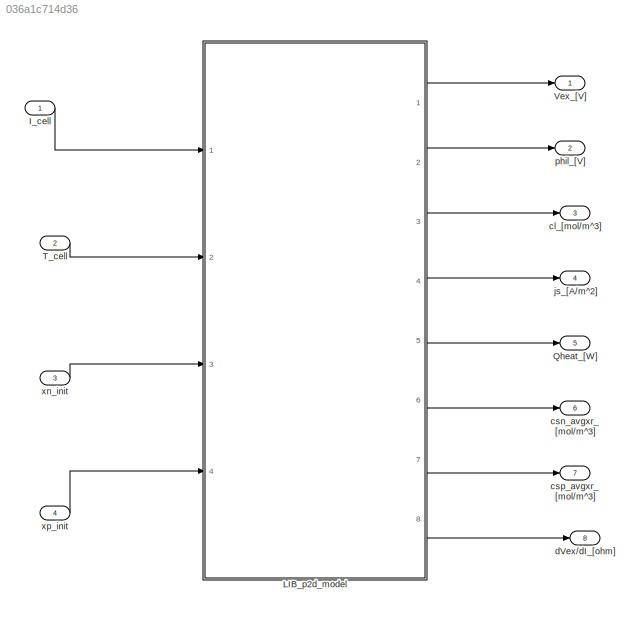
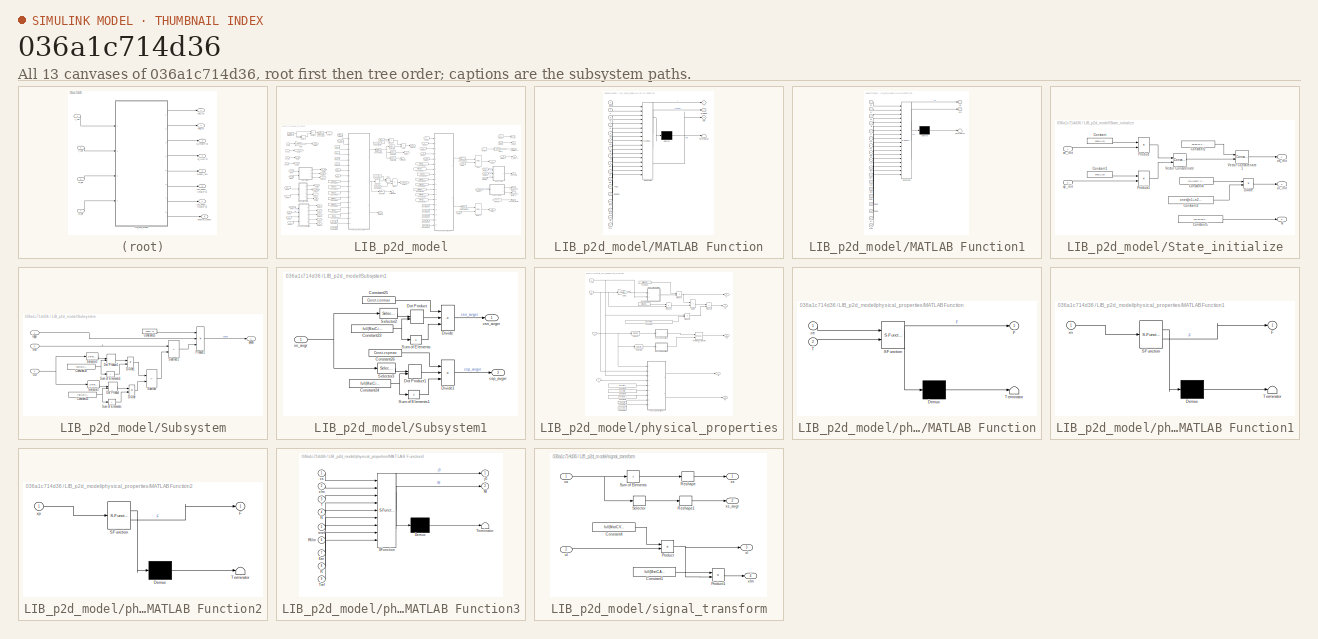
[diagram: thumbnail index - all 13 canvases of the model, root first then tree order]
MODEL slx_036a1c714d36
KIND model
CONFIG AbsTol = auto
CONFIG EnableMultiTasking = off
CONFIG FixedStep = dt
CONFIG MaxStep = auto
CONFIG MinStep = auto
CONFIG RelTol = 1e-3
CONFIG SampleTimeConstraint = Unconstrained
CONFIG SolverName = FixedStepDiscrete
CONFIG StartTime = 0.0
CONFIG StopTime = inf
BLOCK [Inport] I_cell
  OutDataTypeStr = single
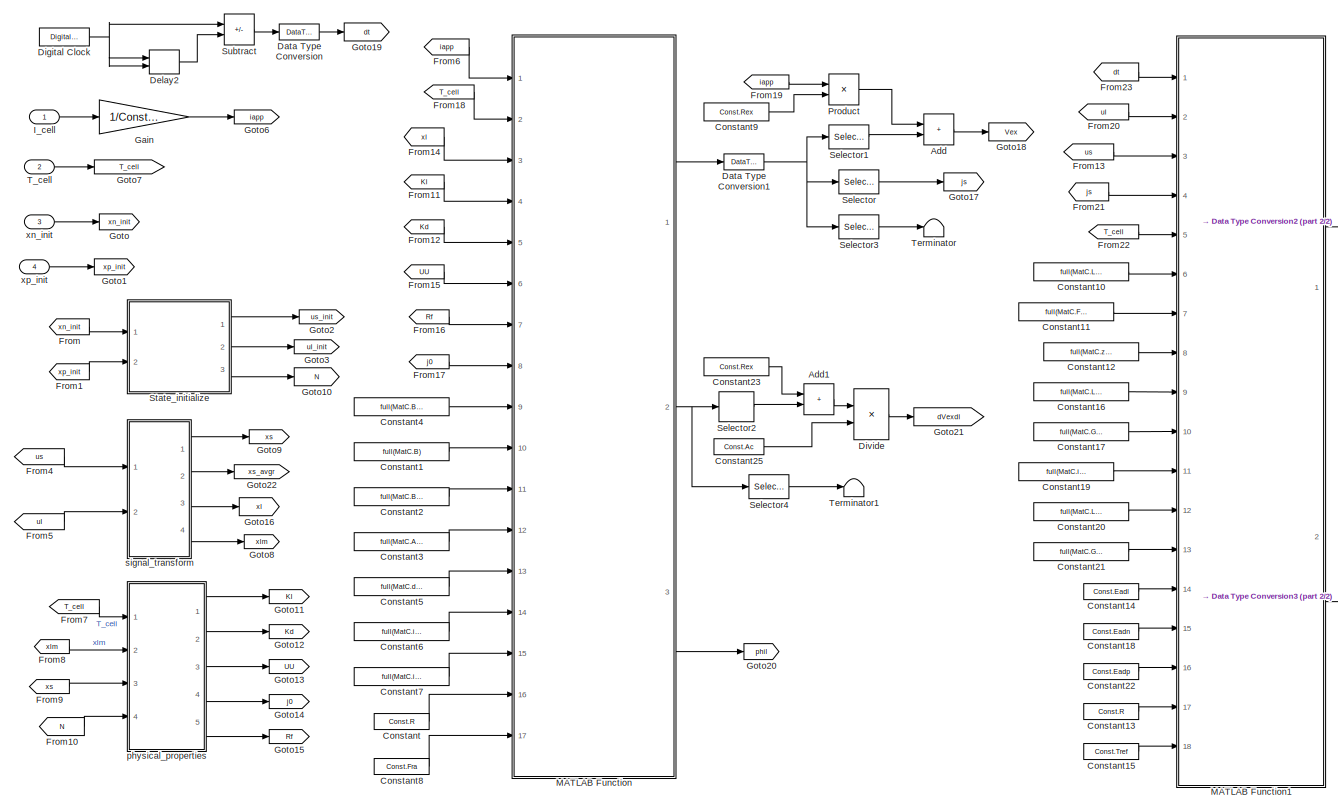
[diagram: LIB_p2d_model - part 1/2, center side, full height]
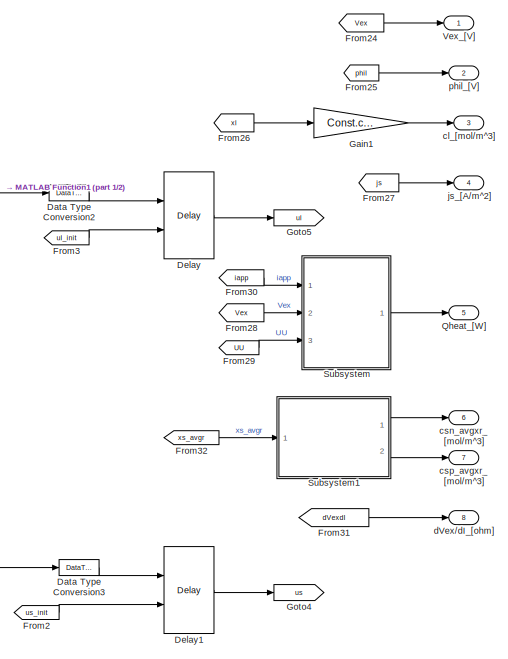
[diagram: LIB_p2d_model - part 2/2, right side, full height]
BLOCK [SubSystem] LIB_p2d_model
  Ports = [4, 8]
BLOCK [Sum] LIB_p2d_model/Add
  IconShape = rectangular
  Ports = [2, 1]
BLOCK [Sum] LIB_p2d_model/Add1
  IconShape = rectangular
  Ports = [2, 1]
BLOCK [Constant] LIB_p2d_model/Constant
  OutDataTypeStr = single
  Value = Const.R
BLOCK [Constant] LIB_p2d_model/Constant1
  OutDataTypeStr = single
  Value = full(MatC.B)
BLOCK [Constant] LIB_p2d_model/Constant10
  OutDataTypeStr = single
  Value = full(MatC.Lcl)
BLOCK [Constant] LIB_p2d_model/Constant11
  OutDataTypeStr = single
  Value = full(MatC.Fcl)
BLOCK [Constant] LIB_p2d_model/Constant12
  OutDataTypeStr = uint8
  Value = full(MatC.zidx)
BLOCK [Constant] LIB_p2d_model/Constant13
  OutDataTypeStr = single
  Value = Const.R
BLOCK [Constant] LIB_p2d_model/Constant14
  OutDataTypeStr = single
  Value = Const.Eadl
BLOCK [Constant] LIB_p2d_model/Constant15
  OutDataTypeStr = single
  Value = Const.Tref
BLOCK [Constant] LIB_p2d_model/Constant16
  OutDataTypeStr = single
  Value = full(MatC.Lcn)
BLOCK [Constant] LIB_p2d_model/Constant17
  OutDataTypeStr = single
  Value = full(MatC.Gcn)
BLOCK [Constant] LIB_p2d_model/Constant18
  OutDataTypeStr = single
  Value = Const.Eadn
BLOCK [Constant] LIB_p2d_model/Constant19
  OutDataTypeStr = single
  Value = full(MatC.intn)
  VectorParams1D = off
BLOCK [Constant] LIB_p2d_model/Constant2
  OutDataTypeStr = single
  Value = full(MatC.BF)
BLOCK [Constant] LIB_p2d_model/Constant20
  OutDataTypeStr = single
  Value = full(MatC.Lcp)
BLOCK [Constant] LIB_p2d_model/Constant21
  OutDataTypeStr = single
  Value = full(MatC.Gcp)
BLOCK [Constant] LIB_p2d_model/Constant22
  OutDataTypeStr = single
  Value = Const.Eadp
BLOCK [Constant] LIB_p2d_model/Constant23
  OutDataTypeStr = single
  Value = Const.Rex
BLOCK [Constant] LIB_p2d_model/Constant25
  OutDataTypeStr = single
  Value = Const.Ac
BLOCK [Constant] LIB_p2d_model/Constant3
  OutDataTypeStr = single
  Value = full(MatC.AVG2)
BLOCK [Constant] LIB_p2d_model/Constant4
  OutDataTypeStr = single
  Value = full(MatC.BA)
BLOCK [Constant] LIB_p2d_model/Constant5
  OutDataTypeStr = single
  Value = full(MatC.dphisdy)
BLOCK [Constant] LIB_p2d_model/Constant6
  OutDataTypeStr = single
  Value = full(MatC.intn)
  VectorParams1D = off
BLOCK [Constant] LIB_p2d_model/Constant7
  OutDataTypeStr = single
  Value = full(MatC.intp)
  VectorParams1D = off
BLOCK [Constant] LIB_p2d_model/Constant8
  OutDataTypeStr = single
  Value = Const.Fra
BLOCK [Constant] LIB_p2d_model/Constant9
  OutDataTypeStr = single
  Value = Const.Rex
BLOCK [DataTypeConversion] LIB_p2d_model/Data Type Conversion
  OutDataTypeStr = single
  RndMeth = Floor
  SaturateOnIntegerOverflow = off
BLOCK [DataTypeConversion] LIB_p2d_model/Data Type Conversion1
  OutDataTypeStr = single
  RndMeth = Floor
  SaturateOnIntegerOverflow = off
BLOCK [DataTypeConversion] LIB_p2d_model/Data Type Conversion2
  OutDataTypeStr = single
  RndMeth = Floor
  SaturateOnIntegerOverflow = off
BLOCK [DataTypeConversion] LIB_p2d_model/Data Type Conversion3
  OutDataTypeStr = single
  RndMeth = Floor
  SaturateOnIntegerOverflow = off
BLOCK [Delay] LIB_p2d_model/Delay
  DelayLength = 1
  InitialCondition = 0
  InitialConditionSource = Input port
  InputPortMap = u0,p4
  Ports = [2, 1]
BLOCK [Delay] LIB_p2d_model/Delay1
  DelayLength = 1
  InitialCondition = 0
  InitialConditionSource = Input port
  InputPortMap = u0,p4
  Ports = [2, 1]
BLOCK [Delay] LIB_p2d_model/Delay2
  DelayLength = 1
  InitialCondition = 0
  InitialConditionSource = Input port
  InputPortMap = u0,p4
  Ports = [2, 1]
BLOCK [DigitalClock] LIB_p2d_model/Digital Clock
  SampleTime = dt
BLOCK [Product] LIB_p2d_model/Divide
  Inputs = */
  Ports = [2, 1]
BLOCK [From] LIB_p2d_model/From
  GotoTag = xn_init
BLOCK [From] LIB_p2d_model/From1
  GotoTag = xp_init
BLOCK [From] LIB_p2d_model/From10
  GotoTag = N
BLOCK [From] LIB_p2d_model/From11
  GotoTag = Kl
BLOCK [From] LIB_p2d_model/From12
  GotoTag = Kd
BLOCK [From] LIB_p2d_model/From13
  GotoTag = us
BLOCK [From] LIB_p2d_model/From14
  GotoTag = xl
BLOCK [From] LIB_p2d_model/From15
  GotoTag = UU
BLOCK [From] LIB_p2d_model/From16
  GotoTag = Rf
BLOCK [From] LIB_p2d_model/From17
  GotoTag = j0
BLOCK [From] LIB_p2d_model/From18
  GotoTag = T_cell
BLOCK [From] LIB_p2d_model/From19
  GotoTag = iapp
BLOCK [From] LIB_p2d_model/From2
  GotoTag = us_init
BLOCK [From] LIB_p2d_model/From20
  GotoTag = ul
BLOCK [From] LIB_p2d_model/From21
  GotoTag = js
BLOCK [From] LIB_p2d_model/From22
  GotoTag = T_cell
BLOCK [From] LIB_p2d_model/From23
  GotoTag = dt
BLOCK [From] LIB_p2d_model/From24
  GotoTag = Vex
BLOCK [From] LIB_p2d_model/From25
  GotoTag = phil
BLOCK [From] LIB_p2d_model/From26
  GotoTag = xl
BLOCK [From] LIB_p2d_model/From27
  GotoTag = js
BLOCK [From] LIB_p2d_model/From28
  GotoTag = Vex
BLOCK [From] LIB_p2d_model/From29
  GotoTag = UU
BLOCK [From] LIB_p2d_model/From3
  GotoTag = ul_init
BLOCK [From] LIB_p2d_model/From30
  GotoTag = iapp
BLOCK [From] LIB_p2d_model/From31
  GotoTag = dVexdI
BLOCK [From] LIB_p2d_model/From32
  GotoTag = xs_avgr
BLOCK [From] LIB_p2d_model/From4
  GotoTag = us
BLOCK [From] LIB_p2d_model/From5
  GotoTag = ul
BLOCK [From] LIB_p2d_model/From6
  GotoTag = iapp
BLOCK [From] LIB_p2d_model/From7
  GotoTag = T_cell
BLOCK [From] LIB_p2d_model/From8
  GotoTag = xlm
BLOCK [From] LIB_p2d_model/From9
  GotoTag = xs
BLOCK [Gain] LIB_p2d_model/Gain
  Gain = 1/Const.Ac
BLOCK [Gain] LIB_p2d_model/Gain1
  Gain = Const.ce0
BLOCK [Goto] LIB_p2d_model/Goto
  GotoTag = xn_init
BLOCK [Goto] LIB_p2d_model/Goto1
  GotoTag = xp_init
BLOCK [Goto] LIB_p2d_model/Goto10
  GotoTag = N
BLOCK [Goto] LIB_p2d_model/Goto11
  GotoTag = Kl
BLOCK [Goto] LIB_p2d_model/Goto12
  GotoTag = Kd
BLOCK [Goto] LIB_p2d_model/Goto13
  GotoTag = UU
BLOCK [Goto] LIB_p2d_model/Goto14
  GotoTag = j0
BLOCK [Goto] LIB_p2d_model/Goto15
  GotoTag = Rf
BLOCK [Goto] LIB_p2d_model/Goto16
  GotoTag = xl
BLOCK [Goto] LIB_p2d_model/Goto17
  GotoTag = js
BLOCK [Goto] LIB_p2d_model/Goto18
  GotoTag = Vex
BLOCK [Goto] LIB_p2d_model/Goto19
  GotoTag = dt
BLOCK [Goto] LIB_p2d_model/Goto2
  GotoTag = us_init
BLOCK [Goto] LIB_p2d_model/Goto20
  GotoTag = phil
BLOCK [Goto] LIB_p2d_model/Goto21
  GotoTag = dVexdI
BLOCK [Goto] LIB_p2d_model/Goto22
  GotoTag = xs_avgr
BLOCK [Goto] LIB_p2d_model/Goto3
  GotoTag = ul_init
BLOCK [Goto] LIB_p2d_model/Goto4
  GotoTag = us
BLOCK [Goto] LIB_p2d_model/Goto5
  GotoTag = ul
BLOCK [Goto] LIB_p2d_model/Goto6
  GotoTag = iapp
BLOCK [Goto] LIB_p2d_model/Goto7
  GotoTag = T_cell
BLOCK [Goto] LIB_p2d_model/Goto8
  GotoTag = xlm
BLOCK [Goto] LIB_p2d_model/Goto9
  GotoTag = xs
BLOCK [Inport] LIB_p2d_model/I_cell
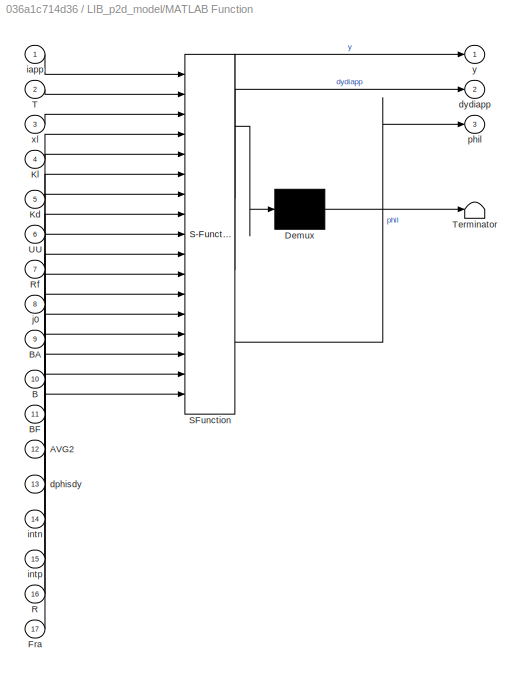
BLOCK [SubSystem] LIB_p2d_model/MATLAB Function
  ErrorFcn = Stateflow.Translate.translate
  PermitHierarchicalResolution = ExplicitOnly
  Ports = [17, 3]
  SFBlockType = MATLAB Function
  TreatAsAtomicUnit = on
BLOCK [Demux] LIB_p2d_model/MATLAB Function/ Demux 
  Outputs = 1
  Ports = [1, 1]
BLOCK [S-Function] LIB_p2d_model/MATLAB Function/ SFunction 
  EnableBusSupport = off
  FunctionName = sf_sfun
  PortCounts = [17 4]
  Ports = [17, 4]
  SFcnIsStateOwnerBlock = off
  SFunctionDeploymentMode = off
  Tag = Stateflow S-Function 5
BLOCK [Terminator] LIB_p2d_model/MATLAB Function/ Terminator 
BLOCK [Inport] LIB_p2d_model/MATLAB Function/AVG2
  Port = 12
BLOCK [Inport] LIB_p2d_model/MATLAB Function/B
  Port = 10
BLOCK [Inport] LIB_p2d_model/MATLAB Function/BA
  Port = 9
BLOCK [Inport] LIB_p2d_model/MATLAB Function/BF
  Port = 11
BLOCK [Inport] LIB_p2d_model/MATLAB Function/Fra
  Port = 17
BLOCK [Inport] LIB_p2d_model/MATLAB Function/Kd
  Port = 5
BLOCK [Inport] LIB_p2d_model/MATLAB Function/Kl
  Port = 4
BLOCK [Inport] LIB_p2d_model/MATLAB Function/R
  Port = 16
BLOCK [Inport] LIB_p2d_model/MATLAB Function/Rf
  Port = 7
BLOCK [Inport] LIB_p2d_model/MATLAB Function/T
  Port = 2
BLOCK [Inport] LIB_p2d_model/MATLAB Function/UU
  Port = 6
BLOCK [Inport] LIB_p2d_model/MATLAB Function/dphisdy
  Port = 13
BLOCK [Outport] LIB_p2d_model/MATLAB Function/dydiapp
  Port = 2
BLOCK [Inport] LIB_p2d_model/MATLAB Function/iapp
BLOCK [Inport] LIB_p2d_model/MATLAB Function/intn
  Port = 14
BLOCK [Inport] LIB_p2d_model/MATLAB Function/intp
  Port = 15
BLOCK [Inport] LIB_p2d_model/MATLAB Function/j0
  Port = 8
BLOCK [Outport] LIB_p2d_model/MATLAB Function/phil
  Port = 3
BLOCK [Inport] LIB_p2d_model/MATLAB Function/xl
  Port = 3
BLOCK [Outport] LIB_p2d_model/MATLAB Function/y
BLOCK [SubSystem] LIB_p2d_model/MATLAB Function1
  ErrorFcn = Stateflow.Translate.translate
  PermitHierarchicalResolution = ExplicitOnly
  Ports = [18, 2]
  SFBlockType = MATLAB Function
  TreatAsAtomicUnit = on
BLOCK [Demux] LIB_p2d_model/MATLAB Function1/ Demux 
  Outputs = 1
  Ports = [1, 1]
BLOCK [S-Function] LIB_p2d_model/MATLAB Function1/ SFunction 
  EnableBusSupport = off
  FunctionName = sf_sfun
  PortCounts = [18 3]
  Ports = [18, 3]
  SFcnIsStateOwnerBlock = off
  SFunctionDeploymentMode = off
  Tag = Stateflow S-Function 6
BLOCK [Terminator] LIB_p2d_model/MATLAB Function1/ Terminator 
BLOCK [Inport] LIB_p2d_model/MATLAB Function1/Eadl
  Port = 14
BLOCK [Inport] LIB_p2d_model/MATLAB Function1/Eadn
  Port = 15
BLOCK [Inport] LIB_p2d_model/MATLAB Function1/Eadp
  Port = 16
BLOCK [Inport] LIB_p2d_model/MATLAB Function1/Fcl
  Port = 7
BLOCK [Inport] LIB_p2d_model/MATLAB Function1/Gcn
  Port = 10
BLOCK [Inport] LIB_p2d_model/MATLAB Function1/Gcp
  Port = 13
BLOCK [Inport] LIB_p2d_model/MATLAB Function1/Lcl
  Port = 6
BLOCK [Inport] LIB_p2d_model/MATLAB Function1/Lcn
  Port = 9
BLOCK [Inport] LIB_p2d_model/MATLAB Function1/Lcp
  Port = 12
BLOCK [Inport] LIB_p2d_model/MATLAB Function1/R
  Port = 17
BLOCK [Inport] LIB_p2d_model/MATLAB Function1/T
  Port = 5
BLOCK [Inport] LIB_p2d_model/MATLAB Function1/Tref
  Port = 18
BLOCK [Inport] LIB_p2d_model/MATLAB Function1/dt
BLOCK [Inport] LIB_p2d_model/MATLAB Function1/intn
  Port = 11
BLOCK [Inport] LIB_p2d_model/MATLAB Function1/js
  Port = 4
BLOCK [Inport] LIB_p2d_model/MATLAB Function1/ul
  Port = 2
BLOCK [Outport] LIB_p2d_model/MATLAB Function1/ul1
BLOCK [Inport] LIB_p2d_model/MATLAB Function1/us
  Port = 3
BLOCK [Outport] LIB_p2d_model/MATLAB Function1/us1
  Port = 2
BLOCK [Inport] LIB_p2d_model/MATLAB Function1/zidx
  Port = 8
BLOCK [Product] LIB_p2d_model/Product
  Ports = [2, 1]
BLOCK [Outport] LIB_p2d_model/Qheat_[W]
  Port = 5
BLOCK [Selector] LIB_p2d_model/Selector
  IndexOptions = Index vector (dialog)
  Indices = 1:n1+n3
  OutputSizes = 1
  Ports = [1, 1]
BLOCK [Selector] LIB_p2d_model/Selector1
  IndexOptions = Index vector (dialog)
  Indices = n1+n3+2
  OutputSizes = 1
  Ports = [1, 1]
BLOCK [Selector] LIB_p2d_model/Selector2
  IndexOptions = Index vector (dialog)
  Indices = n1+n3+2
  OutputSizes = 1
  Ports = [1, 1]
BLOCK [Selector] LIB_p2d_model/Selector3
  IndexOptions = Index vector (dialog)
  Indices = n1+n3+3
  InputPortWidth = n1+n3+3
  OutputSizes = 1
  Ports = [1, 1]
BLOCK [Selector] LIB_p2d_model/Selector4
  IndexOptions = Index vector (dialog)
  Indices = n1+n3+3
  InputPortWidth = n1+n3+3
  OutputSizes = 1
  Ports = [1, 1]
BLOCK [SubSystem] LIB_p2d_model/State_initialize
  Ports = [2, 3]
BLOCK [Constant] LIB_p2d_model/State_initialize/Constant
  OutDataTypeStr = single
  Value = ones(1,n1)
  VectorParams1D = off
BLOCK [Constant] LIB_p2d_model/State_initialize/Constant1
  OutDataTypeStr = single
  Value = ones(1,n3)
  VectorParams1D = off
BLOCK [Constant] LIB_p2d_model/State_initialize/Constant2
  OutDataTypeStr = single
  Value = zeros(n4-1,n1+n3)
  VectorParams1D = off
BLOCK [Constant] LIB_p2d_model/State_initialize/Constant3
  OutDataTypeStr = single
  Value = ones((n1+n2+n3)*ord+1,1)
  VectorParams1D = off
BLOCK [Constant] LIB_p2d_model/State_initialize/Constant4
  OutDataTypeStr = single
  Value = full(MatC.Vcl)
BLOCK [Constant] LIB_p2d_model/State_initialize/Constant5
  OutDataTypeStr = uint8
  Value = [n1,n2,n3,n4,ord]
BLOCK [Product] LIB_p2d_model/State_initialize/Divide
  Inputs = /*
  Multiplication = Matrix(*)
  Ports = [2, 1]
BLOCK [Outport] LIB_p2d_model/State_initialize/N
  Port = 3
BLOCK [Product] LIB_p2d_model/State_initialize/Product
  Ports = [2, 1]
BLOCK [Product] LIB_p2d_model/State_initialize/Product1
  Ports = [2, 1]
BLOCK [Concatenate] LIB_p2d_model/State_initialize/Vector Concatenate
  ConcatenateDimension = 2
  Mode = Multidimensional array
  Ports = [2, 1]
BLOCK [Concatenate] LIB_p2d_model/State_initialize/Vector Concatenate1
  Mode = Multidimensional array
  Ports = [2, 1]
BLOCK [Outport] LIB_p2d_model/State_initialize/ul_init
  Port = 2
BLOCK [Outport] LIB_p2d_model/State_initialize/us_init
BLOCK [Inport] LIB_p2d_model/State_initialize/xn_init
BLOCK [Inport] LIB_p2d_model/State_initialize/xp_init
  Port = 2
BLOCK [SubSystem] LIB_p2d_model/Subsystem
  Ports = [3, 1]
BLOCK [Constant] LIB_p2d_model/Subsystem/Constant23
  OutDataTypeStr = single
  Value = full(MatC.intn)
  VectorParams1D = off
BLOCK [Constant] LIB_p2d_model/Subsystem/Constant24
  OutDataTypeStr = single
  Value = full(MatC.intp)
  VectorParams1D = off
BLOCK [Constant] LIB_p2d_model/Subsystem/Constant25
  OutDataTypeStr = single
  Value = Const.Ac
BLOCK [Product] LIB_p2d_model/Subsystem/Divide
  Inputs = */
  Ports = [2, 1]
BLOCK [Product] LIB_p2d_model/Subsystem/Divide1
  Inputs = */
  Ports = [2, 1]
BLOCK [DotProduct] LIB_p2d_model/Subsystem/Dot Product
  OutDataTypeStr = Inherit: Inherit via internal rule
BLOCK [DotProduct] LIB_p2d_model/Subsystem/Dot Product1
  OutDataTypeStr = Inherit: Inherit via internal rule
BLOCK [Product] LIB_p2d_model/Subsystem/Product1
  Inputs = 3
  Ports = [3, 1]
BLOCK [Selector] LIB_p2d_model/Subsystem/Selector2
  IndexOptions = Index vector (dialog)
  Indices = 1:n1
  OutputSizes = 1
  Ports = [1, 1]
BLOCK [Selector] LIB_p2d_model/Subsystem/Selector3
  IndexOptions = Index vector (dialog)
  Indices = n1+1:n1+n3
  OutputSizes = 1
  Ports = [1, 1]
BLOCK [Sum] LIB_p2d_model/Subsystem/Subtract
  IconShape = rectangular
  Inputs = +-
  Ports = [2, 1]
BLOCK [Sum] LIB_p2d_model/Subsystem/Subtract1
  IconShape = rectangular
  Inputs = +-
  Ports = [2, 1]
BLOCK [Sum] LIB_p2d_model/Subsystem/Sum of Elements
  IconShape = rectangular
  Inputs = +
  Ports = [1, 1]
BLOCK [Sum] LIB_p2d_model/Subsystem/Sum of Elements1
  IconShape = rectangular
  Inputs = +
  Ports = [1, 1]
BLOCK [Inport] LIB_p2d_model/Subsystem/UU
  Port = 3
BLOCK [Inport] LIB_p2d_model/Subsystem/Vex
  Port = 2
BLOCK [Inport] LIB_p2d_model/Subsystem/iapp
BLOCK [Outport] LIB_p2d_model/Subsystem/qheat
BLOCK [SubSystem] LIB_p2d_model/Subsystem1
  Ports = [1, 2]
BLOCK [Constant] LIB_p2d_model/Subsystem1/Constant23
  OutDataTypeStr = single
  Value = full(MatC.intn)
  VectorParams1D = off
BLOCK [Constant] LIB_p2d_model/Subsystem1/Constant24
  OutDataTypeStr = single
  Value = full(MatC.intp)
  VectorParams1D = off
BLOCK [Constant] LIB_p2d_model/Subsystem1/Constant25
  OutDataTypeStr = single
  Value = Const.csnmax
BLOCK [Constant] LIB_p2d_model/Subsystem1/Constant26
  OutDataTypeStr = single
  Value = Const.cspmax
BLOCK [Product] LIB_p2d_model/Subsystem1/Divide
  Inputs = **/
  Ports = [3, 1]
BLOCK [Product] LIB_p2d_model/Subsystem1/Divide1
  Inputs = **/
  Ports = [3, 1]
BLOCK [DotProduct] LIB_p2d_model/Subsystem1/Dot Product
  OutDataTypeStr = Inherit: Inherit via internal rule
BLOCK [DotProduct] LIB_p2d_model/Subsystem1/Dot Product1
  OutDataTypeStr = Inherit: Inherit via internal rule
BLOCK [Selector] LIB_p2d_model/Subsystem1/Selector2
  IndexOptions = Index vector (dialog)
  Indices = 1:n1
  OutputSizes = 1
  Ports = [1, 1]
BLOCK [Selector] LIB_p2d_model/Subsystem1/Selector3
  IndexOptions = Index vector (dialog)
  Indices = n1+1:n1+n3
  OutputSizes = 1
  Ports = [1, 1]
BLOCK [Sum] LIB_p2d_model/Subsystem1/Sum of Elements
  IconShape = rectangular
  Inputs = +
  Ports = [1, 1]
BLOCK [Sum] LIB_p2d_model/Subsystem1/Sum of Elements1
  IconShape = rectangular
  Inputs = +
  Ports = [1, 1]
BLOCK [Outport] LIB_p2d_model/Subsystem1/csn_avgxr
BLOCK [Outport] LIB_p2d_model/Subsystem1/csp_avgxr
  Port = 2
BLOCK [Inport] LIB_p2d_model/Subsystem1/xs_avgr
BLOCK [Sum] LIB_p2d_model/Subtract
  IconShape = rectangular
  Inputs = +-
  Ports = [2, 1]
BLOCK [Inport] LIB_p2d_model/T_cell
  Port = 2
BLOCK [Terminator] LIB_p2d_model/Terminator
BLOCK [Terminator] LIB_p2d_model/Terminator1
BLOCK [Outport] LIB_p2d_model/Vex_[V]
BLOCK [Outport] LIB_p2d_model/cl_[mol//m^3]
  Port = 3
BLOCK [Outport] LIB_p2d_model/csn_avgxr_[mol//m^3]
  Port = 6
BLOCK [Outport] LIB_p2d_model/csp_avgxr_[mol//m^3]
  Port = 7
BLOCK [Outport] LIB_p2d_model/dVex//dI_[ohm]
  Port = 8
BLOCK [Outport] LIB_p2d_model/js_[A//m^2]
  Port = 4
BLOCK [Outport] LIB_p2d_model/phil_[V]
  Port = 2
BLOCK [SubSystem] LIB_p2d_model/physical_properties
  Ports = [4, 5]
BLOCK [Constant] LIB_p2d_model/physical_properties/Constant
  OutDataTypeStr = single
  Value = full(MatC.EXT)
BLOCK [Constant] LIB_p2d_model/physical_properties/Constant1
  OutDataTypeStr = single
  Value = full(MatC.EXT)
BLOCK [Constant] LIB_p2d_model/physical_properties/Constant13
  OutDataTypeStr = single
  Value = Const.R
BLOCK [Constant] LIB_p2d_model/physical_properties/Constant15
  OutDataTypeStr = single
  Value = Const.Tref
BLOCK [Constant] LIB_p2d_model/physical_properties/Constant2
  OutDataTypeStr = single
  Value = 2*Const.R/Const.Fra*(1+Const.dlnfdce)*(1-Const.tplus)
BLOCK [Constant] LIB_p2d_model/physical_properties/Constant3
  OutDataTypeStr = single
  Value = [Const.ienref, Const.iepref]
BLOCK [Constant] LIB_p2d_model/physical_properties/Constant4
  OutDataTypeStr = single
  Value = [Const.Rfilmn, Const.Rfilmp]
BLOCK [Constant] LIB_p2d_model/physical_properties/Constant5
  OutDataTypeStr = single
  Value = [Const.Earn, Const.Earp]
BLOCK [Product] LIB_p2d_model/physical_properties/Divide
  Inputs = */
  Ports = [2, 1]
BLOCK [Gain] LIB_p2d_model/physical_properties/Gain1
  Gain = Const.ce0
BLOCK [Outport] LIB_p2d_model/physical_properties/Kd
  Port = 2
BLOCK [Outport] LIB_p2d_model/physical_properties/Kl
BLOCK [SubSystem] LIB_p2d_model/physical_properties/MATLAB Function
  ErrorFcn = Stateflow.Translate.translate
  PermitHierarchicalResolution = ExplicitOnly
  Ports = [2, 1]
  SFBlockType = MATLAB Function
  TreatAsAtomicUnit = on
BLOCK [Demux] LIB_p2d_model/physical_properties/MATLAB Function/ Demux 
  Outputs = 1
  Ports = [1, 1]
BLOCK [S-Function] LIB_p2d_model/physical_properties/MATLAB Function/ SFunction 
  EnableBusSupport = off
  FunctionName = sf_sfun
  PortCounts = [2 2]
  Ports = [2, 2]
  SFcnIsStateOwnerBlock = off
  SFunctionDeploymentMode = off
  Tag = Stateflow S-Function 2
BLOCK [Terminator] LIB_p2d_model/physical_properties/MATLAB Function/ Terminator 
BLOCK [Outport] LIB_p2d_model/physical_properties/MATLAB Function/F
BLOCK [Inport] LIB_p2d_model/physical_properties/MATLAB Function/T
  Port = 2
BLOCK [Inport] LIB_p2d_model/physical_properties/MATLAB Function/ce
BLOCK [SubSystem] LIB_p2d_model/physical_properties/MATLAB Function1
  ErrorFcn = Stateflow.Translate.translate
  PermitHierarchicalResolution = ExplicitOnly
  Ports = [1, 1]
  SFBlockType = MATLAB Function
  TreatAsAtomicUnit = on
BLOCK [Demux] LIB_p2d_model/physical_properties/MATLAB Function1/ Demux 
  Outputs = 1
  Ports = [1, 1]
BLOCK [S-Function] LIB_p2d_model/physical_properties/MATLAB Function1/ SFunction 
  EnableBusSupport = off
  FunctionName = sf_sfun
  PortCounts = [1 2]
  Ports = [1, 2]
  SFcnIsStateOwnerBlock = off
  SFunctionDeploymentMode = off
  Tag = Stateflow S-Function 1
BLOCK [Terminator] LIB_p2d_model/physical_properties/MATLAB Function1/ Terminator 
BLOCK [Outport] LIB_p2d_model/physical_properties/MATLAB Function1/F
BLOCK [Inport] LIB_p2d_model/physical_properties/MATLAB Function1/xn
BLOCK [SubSystem] LIB_p2d_model/physical_properties/MATLAB Function2
  ErrorFcn = Stateflow.Translate.translate
  PermitHierarchicalResolution = ExplicitOnly
  Ports = [1, 1]
  SFBlockType = MATLAB Function
  TreatAsAtomicUnit = on
BLOCK [Demux] LIB_p2d_model/physical_properties/MATLAB Function2/ Demux 
  Outputs = 1
  Ports = [1, 1]
BLOCK [S-Function] LIB_p2d_model/physical_properties/MATLAB Function2/ SFunction 
  EnableBusSupport = off
  FunctionName = sf_sfun
  PortCounts = [1 2]
  Ports = [1, 2]
  SFcnIsStateOwnerBlock = off
  SFunctionDeploymentMode = off
  Tag = Stateflow S-Function 3
BLOCK [Terminator] LIB_p2d_model/physical_properties/MATLAB Function2/ Terminator 
BLOCK [Outport] LIB_p2d_model/physical_properties/MATLAB Function2/F
BLOCK [Inport] LIB_p2d_model/physical_properties/MATLAB Function2/xp
BLOCK [SubSystem] LIB_p2d_model/physical_properties/MATLAB Function3
  ErrorFcn = Stateflow.Translate.translate
  PermitHierarchicalResolution = ExplicitOnly
  Ports = [9, 2]
  SFBlockType = MATLAB Function
  TreatAsAtomicUnit = on
BLOCK [Demux] LIB_p2d_model/physical_properties/MATLAB Function3/ Demux 
  Outputs = 1
  Ports = [1, 1]
BLOCK [S-Function] LIB_p2d_model/physical_properties/MATLAB Function3/ SFunction 
  EnableBusSupport = off
  FunctionName = sf_sfun
  PortCounts = [9 3]
  Ports = [9, 3]
  SFcnIsStateOwnerBlock = off
  SFunctionDeploymentMode = off
  Tag = Stateflow S-Function 4
BLOCK [Terminator] LIB_p2d_model/physical_properties/MATLAB Function3/ Terminator 
BLOCK [Inport] LIB_p2d_model/physical_properties/MATLAB Function3/Ear
  Port = 7
BLOCK [Inport] LIB_p2d_model/physical_properties/MATLAB Function3/N
  Port = 4
BLOCK [Inport] LIB_p2d_model/physical_properties/MATLAB Function3/R
  Port = 8
BLOCK [Outport] LIB_p2d_model/physical_properties/MATLAB Function3/Rf
  Port = 2
BLOCK [Inport] LIB_p2d_model/physical_properties/MATLAB Function3/Rfilm
  Port = 6
BLOCK [Inport] LIB_p2d_model/physical_properties/MATLAB Function3/T
  Port = 3
BLOCK [Inport] LIB_p2d_model/physical_properties/MATLAB Function3/Tref
  Port = 9
BLOCK [Inport] LIB_p2d_model/physical_properties/MATLAB Function3/ieref
  Port = 5
BLOCK [Outport] LIB_p2d_model/physical_properties/MATLAB Function3/j0
BLOCK [Inport] LIB_p2d_model/physical_properties/MATLAB Function3/xlm
  Port = 2
BLOCK [Inport] LIB_p2d_model/physical_properties/MATLAB Function3/xs
BLOCK [Inport] LIB_p2d_model/physical_properties/N
  Port = 4
BLOCK [Product] LIB_p2d_model/physical_properties/Product
  Multiplication = Matrix(*)
  Ports = [2, 1]
BLOCK [Product] LIB_p2d_model/physical_properties/Product1
  Multiplication = Matrix(*)
  Ports = [2, 1]
BLOCK [Product] LIB_p2d_model/physical_properties/Product2
  Ports = [2, 1]
BLOCK [Product] LIB_p2d_model/physical_properties/Product3
  Ports = [2, 1]
BLOCK [Outport] LIB_p2d_model/physical_properties/Rf
  Port = 5
BLOCK [Selector] LIB_p2d_model/physical_properties/Selector
  IndexOptions = Index vector (dialog)
  Indices = 1:n1
  OutputSizes = 1
  Ports = [1, 1]
BLOCK [Selector] LIB_p2d_model/physical_properties/Selector1
  IndexOptions = Index vector (dialog)
  Indices = n1+1:n1+n3
  OutputSizes = 1
  Ports = [1, 1]
BLOCK [Inport] LIB_p2d_model/physical_properties/T_cell
BLOCK [Outport] LIB_p2d_model/physical_properties/UU
  Port = 3
BLOCK [Concatenate] LIB_p2d_model/physical_properties/Vector Concatenate1
  Mode = Multidimensional array
  Ports = [2, 1]
BLOCK [Outport] LIB_p2d_model/physical_properties/j0
  Port = 4
BLOCK [Inport] LIB_p2d_model/physical_properties/xlm
  Port = 2
BLOCK [Inport] LIB_p2d_model/physical_properties/xs
  Port = 3
BLOCK [SubSystem] LIB_p2d_model/signal_transform
  Ports = [2, 4]
BLOCK [Constant] LIB_p2d_model/signal_transform/Constant1
  OutDataTypeStr = single
  Value = full(MatC.AVG1)
BLOCK [Constant] LIB_p2d_model/signal_transform/Constant4
  OutDataTypeStr = single
  Value = full(MatC.Vcl)
BLOCK [Product] LIB_p2d_model/signal_transform/Product
  Multiplication = Matrix(*)
  Ports = [2, 1]
BLOCK [Product] LIB_p2d_model/signal_transform/Product1
  Multiplication = Matrix(*)
  Ports = [2, 1]
BLOCK [Reshape] LIB_p2d_model/signal_transform/Reshape
  OutputDimensionality = Column vector (2-D)
  Ports = [1, 1]
BLOCK [Reshape] LIB_p2d_model/signal_transform/Reshape1
  OutputDimensionality = Column vector (2-D)
  Ports = [1, 1]
BLOCK [Selector] LIB_p2d_model/signal_transform/Selector
  IndexOptions = Index vector (dialog),Select all
  Indices = n4,1
  InputPortWidth = 3
  NumberOfDimensions = 2
  OutputSizes = 1,1
  Ports = [1, 1]
BLOCK [Sum] LIB_p2d_model/signal_transform/Sum of Elements
  CollapseMode = Specified dimension
  IconShape = rectangular
  Inputs = +
  Ports = [1, 1]
BLOCK [Inport] LIB_p2d_model/signal_transform/ul
  Port = 2
BLOCK [Inport] LIB_p2d_model/signal_transform/us
BLOCK [Outport] LIB_p2d_model/signal_transform/xl
  Port = 3
BLOCK [Outport] LIB_p2d_model/signal_transform/xlm
  Port = 4
BLOCK [Outport] LIB_p2d_model/signal_transform/xs
BLOCK [Outport] LIB_p2d_model/signal_transform/xs_avgr
  Port = 2
BLOCK [Inport] LIB_p2d_model/xn_init
  Port = 3
BLOCK [Inport] LIB_p2d_model/xp_init
  Port = 4
BLOCK [Outport] Qheat_[W]
  Port = 5
BLOCK [Inport] T_cell
  OutDataTypeStr = single
  Port = 2
BLOCK [Outport] Vex_[V]
BLOCK [Outport] cl_[mol//m^3]
  Port = 3
BLOCK [Outport] csn_avgxr_[mol//m^3]
  Port = 6
BLOCK [Outport] csp_avgxr_[mol//m^3]
  Port = 7
BLOCK [Outport] dVex//dI_[ohm]
  Port = 8
BLOCK [Outport] js_[A//m^2]
  Port = 4
BLOCK [Outport] phil_[V]
  Port = 2
BLOCK [Inport] xn_init
  OutDataTypeStr = single
  Port = 3
BLOCK [Inport] xp_init
  OutDataTypeStr = single
  Port = 4
LINE I_cell:1 -> LIB_p2d_model:1
LINE LIB_p2d_model/Add1:1 -> LIB_p2d_model/Divide:1
LINE LIB_p2d_model/Add:1 -> LIB_p2d_model/Goto18:1
LINE LIB_p2d_model/Constant10:1 -> LIB_p2d_model/MATLAB Function1:6
LINE LIB_p2d_model/Constant11:1 -> LIB_p2d_model/MATLAB Function1:7
LINE LIB_p2d_model/Constant12:1 -> LIB_p2d_model/MATLAB Function1:8
LINE LIB_p2d_model/Constant13:1 -> LIB_p2d_model/MATLAB Function1:17
LINE LIB_p2d_model/Constant14:1 -> LIB_p2d_model/MATLAB Function1:14
LINE LIB_p2d_model/Constant15:1 -> LIB_p2d_model/MATLAB Function1:18
LINE LIB_p2d_model/Constant16:1 -> LIB_p2d_model/MATLAB Function1:9
LINE LIB_p2d_model/Constant17:1 -> LIB_p2d_model/MATLAB Function1:10
LINE LIB_p2d_model/Constant18:1 -> LIB_p2d_model/MATLAB Function1:15
LINE LIB_p2d_model/Constant19:1 -> LIB_p2d_model/MATLAB Function1:11
LINE LIB_p2d_model/Constant1:1 -> LIB_p2d_model/MATLAB Function:10
LINE LIB_p2d_model/Constant20:1 -> LIB_p2d_model/MATLAB Function1:12
LINE LIB_p2d_model/Constant21:1 -> LIB_p2d_model/MATLAB Function1:13
LINE LIB_p2d_model/Constant22:1 -> LIB_p2d_model/MATLAB Function1:16
LINE LIB_p2d_model/Constant23:1 -> LIB_p2d_model/Add1:1
LINE LIB_p2d_model/Constant25:1 -> LIB_p2d_model/Divide:2
LINE LIB_p2d_model/Constant2:1 -> LIB_p2d_model/MATLAB Function:11
LINE LIB_p2d_model/Constant3:1 -> LIB_p2d_model/MATLAB Function:12
LINE LIB_p2d_model/Constant4:1 -> LIB_p2d_model/MATLAB Function:9
LINE LIB_p2d_model/Constant5:1 -> LIB_p2d_model/MATLAB Function:13
LINE LIB_p2d_model/Constant6:1 -> LIB_p2d_model/MATLAB Function:14
LINE LIB_p2d_model/Constant7:1 -> LIB_p2d_model/MATLAB Function:15
LINE LIB_p2d_model/Constant8:1 -> LIB_p2d_model/MATLAB Function:17
LINE LIB_p2d_model/Constant9:1 -> LIB_p2d_model/Product:2
LINE LIB_p2d_model/Constant:1 -> LIB_p2d_model/MATLAB Function:16
NET LIB_p2d_model/Data Type Conversion1:1 -> LIB_p2d_model/Selector1:1, LIB_p2d_model/Selector3:1, LIB_p2d_model/Selector:1
LINE LIB_p2d_model/Data Type Conversion2:1 -> LIB_p2d_model/Delay:1
LINE LIB_p2d_model/Data Type Conversion3:1 -> LIB_p2d_model/Delay1:1
LINE LIB_p2d_model/Data Type Conversion:1 -> LIB_p2d_model/Goto19:1
LINE LIB_p2d_model/Delay1:1 -> LIB_p2d_model/Goto4:1
LINE LIB_p2d_model/Delay2:1 -> LIB_p2d_model/Subtract:2
LINE LIB_p2d_model/Delay:1 -> LIB_p2d_model/Goto5:1
NET LIB_p2d_model/Digital Clock:1 -> LIB_p2d_model/Delay2:1, LIB_p2d_model/Delay2:2, LIB_p2d_model/Subtract:1
LINE LIB_p2d_model/Divide:1 -> LIB_p2d_model/Goto21:1
LINE LIB_p2d_model/From10:1 -> LIB_p2d_model/physical_properties:4
LINE LIB_p2d_model/From11:1 -> LIB_p2d_model/MATLAB Function:4
LINE LIB_p2d_model/From12:1 -> LIB_p2d_model/MATLAB Function:5
LINE LIB_p2d_model/From13:1 -> LIB_p2d_model/MATLAB Function1:3
LINE LIB_p2d_model/From14:1 -> LIB_p2d_model/MATLAB Function:3
LINE LIB_p2d_model/From15:1 -> LIB_p2d_model/MATLAB Function:6
LINE LIB_p2d_model/From16:1 -> LIB_p2d_model/MATLAB Function:7
LINE LIB_p2d_model/From17:1 -> LIB_p2d_model/MATLAB Function:8
LINE LIB_p2d_model/From18:1 -> LIB_p2d_model/MATLAB Function:2
LINE LIB_p2d_model/From19:1 -> LIB_p2d_model/Product:1
LINE LIB_p2d_model/From1:1 -> LIB_p2d_model/State_initialize:2
LINE LIB_p2d_model/From20:1 -> LIB_p2d_model/MATLAB Function1:2
LINE LIB_p2d_model/From21:1 -> LIB_p2d_model/MATLAB Function1:4
LINE LIB_p2d_model/From22:1 -> LIB_p2d_model/MATLAB Function1:5
LINE LIB_p2d_model/From23:1 -> LIB_p2d_model/MATLAB Function1:1
LINE LIB_p2d_model/From24:1 -> LIB_p2d_model/Vex_[V]:1
LINE LIB_p2d_model/From25:1 -> LIB_p2d_model/phil_[V]:1
LINE LIB_p2d_model/From26:1 -> LIB_p2d_model/Gain1:1
LINE LIB_p2d_model/From27:1 -> LIB_p2d_model/js_[A//m^2]:1
LINE LIB_p2d_model/From28:1 -> LIB_p2d_model/Subsystem:2
LINE LIB_p2d_model/From29:1 -> LIB_p2d_model/Subsystem:3
LINE LIB_p2d_model/From2:1 -> LIB_p2d_model/Delay1:2
LINE LIB_p2d_model/From30:1 -> LIB_p2d_model/Subsystem:1
LINE LIB_p2d_model/From31:1 -> LIB_p2d_model/dVex//dI_[ohm]:1
LINE LIB_p2d_model/From32:1 -> LIB_p2d_model/Subsystem1:1
LINE LIB_p2d_model/From3:1 -> LIB_p2d_model/Delay:2
LINE LIB_p2d_model/From4:1 -> LIB_p2d_model/signal_transform:1
LINE LIB_p2d_model/From5:1 -> LIB_p2d_model/signal_transform:2
LINE LIB_p2d_model/From6:1 -> LIB_p2d_model/MATLAB Function:1
LINE LIB_p2d_model/From7:1 -> LIB_p2d_model/physical_properties:1
LINE LIB_p2d_model/From8:1 -> LIB_p2d_model/physical_properties:2
LINE LIB_p2d_model/From9:1 -> LIB_p2d_model/physical_properties:3
LINE LIB_p2d_model/From:1 -> LIB_p2d_model/State_initialize:1
LINE LIB_p2d_model/Gain1:1 -> LIB_p2d_model/cl_[mol//m^3]:1
LINE LIB_p2d_model/Gain:1 -> LIB_p2d_model/Goto6:1
LINE LIB_p2d_model/I_cell:1 -> LIB_p2d_model/Gain:1
LINE LIB_p2d_model/MATLAB Function1:1 -> LIB_p2d_model/Data Type Conversion2:1
LINE LIB_p2d_model/MATLAB Function1:2 -> LIB_p2d_model/Data Type Conversion3:1
LINE LIB_p2d_model/MATLAB Function:1 -> LIB_p2d_model/Data Type Conversion1:1
NET LIB_p2d_model/MATLAB Function:2 -> LIB_p2d_model/Selector2:1, LIB_p2d_model/Selector4:1
LINE LIB_p2d_model/MATLAB Function:3 -> LIB_p2d_model/Goto20:1
LINE LIB_p2d_model/Product:1 -> LIB_p2d_model/Add:1
LINE LIB_p2d_model/Selector1:1 -> LIB_p2d_model/Add:2
LINE LIB_p2d_model/Selector2:1 -> LIB_p2d_model/Add1:2
LINE LIB_p2d_model/Selector3:1 -> LIB_p2d_model/Terminator:1
LINE LIB_p2d_model/Selector4:1 -> LIB_p2d_model/Terminator1:1
LINE LIB_p2d_model/Selector:1 -> LIB_p2d_model/Goto17:1
LINE LIB_p2d_model/State_initialize/Constant1:1 -> LIB_p2d_model/State_initialize/Product1:1
LINE LIB_p2d_model/State_initialize/Constant2:1 -> LIB_p2d_model/State_initialize/Vector Concatenate1:1
LINE LIB_p2d_model/State_initialize/Constant3:1 -> LIB_p2d_model/State_initialize/Divide:2
LINE LIB_p2d_model/State_initialize/Constant4:1 -> LIB_p2d_model/State_initialize/Divide:1
LINE LIB_p2d_model/State_initialize/Constant5:1 -> LIB_p2d_model/State_initialize/N:1
LINE LIB_p2d_model/State_initialize/Constant:1 -> LIB_p2d_model/State_initialize/Product:1
LINE LIB_p2d_model/State_initialize/Divide:1 -> LIB_p2d_model/State_initialize/ul_init:1
LINE LIB_p2d_model/State_initialize/Product1:1 -> LIB_p2d_model/State_initialize/Vector Concatenate:2
LINE LIB_p2d_model/State_initialize/Product:1 -> LIB_p2d_model/State_initialize/Vector Concatenate:1
LINE LIB_p2d_model/State_initialize/Vector Concatenate1:1 -> LIB_p2d_model/State_initialize/us_init:1
LINE LIB_p2d_model/State_initialize/Vector Concatenate:1 -> LIB_p2d_model/State_initialize/Vector Concatenate1:2
LINE LIB_p2d_model/State_initialize/xn_init:1 -> LIB_p2d_model/State_initialize/Product:2
LINE LIB_p2d_model/State_initialize/xp_init:1 -> LIB_p2d_model/State_initialize/Product1:2
LINE LIB_p2d_model/State_initialize:1 -> LIB_p2d_model/Goto2:1
LINE LIB_p2d_model/State_initialize:2 -> LIB_p2d_model/Goto3:1
LINE LIB_p2d_model/State_initialize:3 -> LIB_p2d_model/Goto10:1
NET LIB_p2d_model/Subsystem/Constant23:1 -> LIB_p2d_model/Subsystem/Dot Product:2, LIB_p2d_model/Subsystem/Sum of Elements:1
NET LIB_p2d_model/Subsystem/Constant24:1 -> LIB_p2d_model/Subsystem/Dot Product1:2, LIB_p2d_model/Subsystem/Sum of Elements1:1
LINE LIB_p2d_model/Subsystem/Constant25:1 -> LIB_p2d_model/Subsystem/Product1:1
LINE LIB_p2d_model/Subsystem/Divide1:1 -> LIB_p2d_model/Subsystem/Subtract:1
LINE LIB_p2d_model/Subsystem/Divide:1 -> LIB_p2d_model/Subsystem/Subtract:2
LINE LIB_p2d_model/Subsystem/Dot Product1:1 -> LIB_p2d_model/Subsystem/Divide1:1
LINE LIB_p2d_model/Subsystem/Dot Product:1 -> LIB_p2d_model/Subsystem/Divide:1
LINE LIB_p2d_model/Subsystem/Product1:1 -> LIB_p2d_model/Subsystem/qheat:1
LINE LIB_p2d_model/Subsystem/Selector2:1 -> LIB_p2d_model/Subsystem/Dot Product:1
LINE LIB_p2d_model/Subsystem/Selector3:1 -> LIB_p2d_model/Subsystem/Dot Product1:1
LINE LIB_p2d_model/Subsystem/Subtract1:1 -> LIB_p2d_model/Subsystem/Product1:3
LINE LIB_p2d_model/Subsystem/Subtract:1 -> LIB_p2d_model/Subsystem/Subtract1:2
LINE LIB_p2d_model/Subsystem/Sum of Elements1:1 -> LIB_p2d_model/Subsystem/Divide1:2
LINE LIB_p2d_model/Subsystem/Sum of Elements:1 -> LIB_p2d_model/Subsystem/Divide:2
NET LIB_p2d_model/Subsystem/UU:1 -> LIB_p2d_model/Subsystem/Selector2:1, LIB_p2d_model/Subsystem/Selector3:1
LINE LIB_p2d_model/Subsystem/Vex:1 -> LIB_p2d_model/Subsystem/Subtract1:1
LINE LIB_p2d_model/Subsystem/iapp:1 -> LIB_p2d_model/Subsystem/Product1:2
NET LIB_p2d_model/Subsystem1/Constant23:1 -> LIB_p2d_model/Subsystem1/Dot Product:2, LIB_p2d_model/Subsystem1/Sum of Elements:1
NET LIB_p2d_model/Subsystem1/Constant24:1 -> LIB_p2d_model/Subsystem1/Dot Product1:2, LIB_p2d_model/Subsystem1/Sum of Elements1:1
LINE LIB_p2d_model/Subsystem1/Constant25:1 -> LIB_p2d_model/Subsystem1/Divide:1
LINE LIB_p2d_model/Subsystem1/Constant26:1 -> LIB_p2d_model/Subsystem1/Divide1:1
LINE LIB_p2d_model/Subsystem1/Divide1:1 -> LIB_p2d_model/Subsystem1/csp_avgxr:1
LINE LIB_p2d_model/Subsystem1/Divide:1 -> LIB_p2d_model/Subsystem1/csn_avgxr:1
LINE LIB_p2d_model/Subsystem1/Dot Product1:1 -> LIB_p2d_model/Subsystem1/Divide1:2
LINE LIB_p2d_model/Subsystem1/Dot Product:1 -> LIB_p2d_model/Subsystem1/Divide:2
LINE LIB_p2d_model/Subsystem1/Selector2:1 -> LIB_p2d_model/Subsystem1/Dot Product:1
LINE LIB_p2d_model/Subsystem1/Selector3:1 -> LIB_p2d_model/Subsystem1/Dot Product1:1
LINE LIB_p2d_model/Subsystem1/Sum of Elements1:1 -> LIB_p2d_model/Subsystem1/Divide1:3
LINE LIB_p2d_model/Subsystem1/Sum of Elements:1 -> LIB_p2d_model/Subsystem1/Divide:3
NET LIB_p2d_model/Subsystem1/xs_avgr:1 -> LIB_p2d_model/Subsystem1/Selector2:1, LIB_p2d_model/Subsystem1/Selector3:1
LINE LIB_p2d_model/Subsystem1:1 -> LIB_p2d_model/csn_avgxr_[mol//m^3]:1
LINE LIB_p2d_model/Subsystem1:2 -> LIB_p2d_model/csp_avgxr_[mol//m^3]:1
LINE LIB_p2d_model/Subsystem:1 -> LIB_p2d_model/Qheat_[W]:1
LINE LIB_p2d_model/Subtract:1 -> LIB_p2d_model/Data Type Conversion:1
LINE LIB_p2d_model/T_cell:1 -> LIB_p2d_model/Goto7:1
LINE LIB_p2d_model/physical_properties/Constant13:1 -> LIB_p2d_model/physical_properties/MATLAB Function3:8
LINE LIB_p2d_model/physical_properties/Constant15:1 -> LIB_p2d_model/physical_properties/MATLAB Function3:9
LINE LIB_p2d_model/physical_properties/Constant1:1 -> LIB_p2d_model/physical_properties/Product1:1
LINE LIB_p2d_model/physical_properties/Constant2:1 -> LIB_p2d_model/physical_properties/Product2:2
LINE LIB_p2d_model/physical_properties/Constant3:1 -> LIB_p2d_model/physical_properties/MATLAB Function3:5
LINE LIB_p2d_model/physical_properties/Constant4:1 -> LIB_p2d_model/physical_properties/MATLAB Function3:6
LINE LIB_p2d_model/physical_properties/Constant5:1 -> LIB_p2d_model/physical_properties/MATLAB Function3:7
LINE LIB_p2d_model/physical_properties/Constant:1 -> LIB_p2d_model/physical_properties/Product:1
LINE LIB_p2d_model/physical_properties/Divide:1 -> LIB_p2d_model/physical_properties/Product3:1
LINE LIB_p2d_model/physical_properties/Gain1:1 -> LIB_p2d_model/physical_properties/MATLAB Function:1
LINE LIB_p2d_model/physical_properties/MATLAB Function1:1 -> LIB_p2d_model/physical_properties/Vector Concatenate1:1
LINE LIB_p2d_model/physical_properties/MATLAB Function2:1 -> LIB_p2d_model/physical_properties/Vector Concatenate1:2
LINE LIB_p2d_model/physical_properties/MATLAB Function3:1 -> LIB_p2d_model/physical_properties/j0:1
LINE LIB_p2d_model/physical_properties/MATLAB Function3:2 -> LIB_p2d_model/physical_properties/Rf:1
LINE LIB_p2d_model/physical_properties/MATLAB Function:1 -> LIB_p2d_model/physical_properties/Product:2
LINE LIB_p2d_model/physical_properties/N:1 -> LIB_p2d_model/physical_properties/MATLAB Function3:4
LINE LIB_p2d_model/physical_properties/Product1:1 -> LIB_p2d_model/physical_properties/Divide:2
LINE LIB_p2d_model/physical_properties/Product2:1 -> LIB_p2d_model/physical_properties/Product3:2
LINE LIB_p2d_model/physical_properties/Product3:1 -> LIB_p2d_model/physical_properties/Kd:1
NET LIB_p2d_model/physical_properties/Product:1 -> LIB_p2d_model/physical_properties/Divide:1, LIB_p2d_model/physical_properties/Kl:1
LINE LIB_p2d_model/physical_properties/Selector1:1 -> LIB_p2d_model/physical_properties/MATLAB Function2:1
LINE LIB_p2d_model/physical_properties/Selector:1 -> LIB_p2d_model/physical_properties/MATLAB Function1:1
NET LIB_p2d_model/physical_properties/T_cell:1 -> LIB_p2d_model/physical_properties/MATLAB Function3:3, LIB_p2d_model/physical_properties/MATLAB Function:2, LIB_p2d_model/physical_properties/Product2:1
LINE LIB_p2d_model/physical_properties/Vector Concatenate1:1 -> LIB_p2d_model/physical_properties/UU:1
NET LIB_p2d_model/physical_properties/xlm:1 -> LIB_p2d_model/physical_properties/Gain1:1, LIB_p2d_model/physical_properties/MATLAB Function3:2, LIB_p2d_model/physical_properties/Product1:2
NET LIB_p2d_model/physical_properties/xs:1 -> LIB_p2d_model/physical_properties/MATLAB Function3:1, LIB_p2d_model/physical_properties/Selector1:1, LIB_p2d_model/physical_properties/Selector:1
LINE LIB_p2d_model/physical_properties:1 -> LIB_p2d_model/Goto11:1
LINE LIB_p2d_model/physical_properties:2 -> LIB_p2d_model/Goto12:1
LINE LIB_p2d_model/physical_properties:3 -> LIB_p2d_model/Goto13:1
LINE LIB_p2d_model/physical_properties:4 -> LIB_p2d_model/Goto14:1
LINE LIB_p2d_model/physical_properties:5 -> LIB_p2d_model/Goto15:1
LINE LIB_p2d_model/signal_transform/Constant1:1 -> LIB_p2d_model/signal_transform/Product1:1
LINE LIB_p2d_model/signal_transform/Constant4:1 -> LIB_p2d_model/signal_transform/Product:1
LINE LIB_p2d_model/signal_transform/Product1:1 -> LIB_p2d_model/signal_transform/xlm:1
NET LIB_p2d_model/signal_transform/Product:1 -> LIB_p2d_model/signal_transform/Product1:2, LIB_p2d_model/signal_transform/xl:1
LINE LIB_p2d_model/signal_transform/Reshape1:1 -> LIB_p2d_model/signal_transform/xs_avgr:1
LINE LIB_p2d_model/signal_transform/Reshape:1 -> LIB_p2d_model/signal_transform/xs:1
LINE LIB_p2d_model/signal_transform/Selector:1 -> LIB_p2d_model/signal_transform/Reshape1:1
LINE LIB_p2d_model/signal_transform/Sum of Elements:1 -> LIB_p2d_model/signal_transform/Reshape:1
LINE LIB_p2d_model/signal_transform/ul:1 -> LIB_p2d_model/signal_transform/Product:2
NET LIB_p2d_model/signal_transform/us:1 -> LIB_p2d_model/signal_transform/Selector:1, LIB_p2d_model/signal_transform/Sum of Elements:1
LINE LIB_p2d_model/signal_transform:1 -> LIB_p2d_model/Goto9:1
LINE LIB_p2d_model/signal_transform:2 -> LIB_p2d_model/Goto22:1
LINE LIB_p2d_model/signal_transform:3 -> LIB_p2d_model/Goto16:1
LINE LIB_p2d_model/signal_transform:4 -> LIB_p2d_model/Goto8:1
LINE LIB_p2d_model/xn_init:1 -> LIB_p2d_model/Goto:1
LINE LIB_p2d_model/xp_init:1 -> LIB_p2d_model/Goto1:1
LINE LIB_p2d_model:1 -> Vex_[V]:1
LINE LIB_p2d_model:2 -> phil_[V]:1
LINE LIB_p2d_model:3 -> cl_[mol//m^3]:1
LINE LIB_p2d_model:4 -> js_[A//m^2]:1
LINE LIB_p2d_model:5 -> Qheat_[W]:1
LINE LIB_p2d_model:6 -> csn_avgxr_[mol//m^3]:1
LINE LIB_p2d_model:7 -> csp_avgxr_[mol//m^3]:1
LINE LIB_p2d_model:8 -> dVex//dI_[ohm]:1
LINE T_cell:1 -> LIB_p2d_model:2
LINE xn_init:1 -> LIB_p2d_model:3
LINE xp_init:1 -> LIB_p2d_model:4
note: NET lines group one-source signal fan-out (src -> all destinations, sorted); 1:1 wires keep LINE
CHART LIB_p2d_model/physical_properties/MATLAB Function1 states=1 transitions=1
  STATE_LABEL 'eML_blk_kernel()'
  STATE_LABEL 'SCRIPT:\nfunction F=Un(xn)%Open circuit potential of negative electrode [V]\nb=[0.164,0.48,90,0.01,0.025,300,0.136,0.032,100,0.161,0.032,50,0.22,0.032,80,0.505,0.1,90,0.965];\nUn_const=b(1);\nUn_exp1=b(2)*exp(-b(3)*(xn-b(4)));\nUn_atan1=-b(5)/pi*atan(b(6)*(xn-b(7)));\nUn_atan2=-b(8)/pi*atan(b(9)*(xn-b(10)));\nUn_atan3=-b(11)/pi*atan(b(12)*(xn-b(13)));\nUn_atan4=-b(14)/pi*atan(b(15)*(xn-b(16)));\nUn_exp2=-b...<+96ch>'
CHART LIB_p2d_model/physical_properties/MATLAB Function states=1 transitions=1
  STATE_LABEL 'eML_blk_kernel()'
  STATE_LABEL 'SCRIPT:\nfunction F=kappa(ce,T)%Electrolyte conductivity (S/m)\nF=(3.45*exp(-798/T)*(ce/1000).^3-48.5*exp(-1080/T)*(ce/1000).^2+244*exp(-1440/T)*(ce/1000));\nend'
CHART LIB_p2d_model/physical_properties/MATLAB Function2 states=1 transitions=1
  STATE_LABEL 'eML_blk_kernel()'
  STATE_LABEL 'SCRIPT:\nfunction F=Up(xp)%Open circuit potential of positive electrode [V]\nb=[3.67287671914126,0.0392134821245406,0.999470977852800,0.419937084206002,12.8799319870686,-47.2135901049774,64.6252944547241,-40.4701303771546,10.1693381074356;];\nb_Nernst=b(1:3);\nOCP_charge_Nernst=b_Nernst(1)+b_Nernst(2)*log(b_Nernst(3)-xp);\nb_poly=b(4:end);\norder=length(b_poly);\ndOCP_charge_fit=0*xp;\nfor i=1:order\n    d...<+103ch>'
CHART LIB_p2d_model/physical_properties/MATLAB Function3 states=1 transitions=1
  STATE_LABEL 'eML_blk_kernel()'
  STATE_LABEL 'SCRIPT:\nfunction [j0, Rf] = j0_Rf(xs, xlm, T, N, ieref, Rfilm, Ear, R, Tref)\nn1 = uint8(N(1));\nn2 = uint8(N(2));\nn3 = uint8(N(3));\nj0 = xs*0;\nj0(1:n1) = ieref(1)*sqrt(xs(1:n1).*(1-xs(1:n1)).*xlm(1:n1))*exp(-Ear(1)/R*(1/T-1/Tref));\nj0(n1+1:n1+n3) = ieref(2)*sqrt(xs(n1+1:n1+n3).*(1-xs(n1+1:n1+n3)).*xlm(n1+n2+1:n1+n2+n3))*exp(-Ear(2)/R*(1/T-1/Tref));\nRf = xs*0;\nRf(1:n1) = ones(n1,1)*Rfilm(1);\nRf(n1+1...<+35ch>'
CHART LIB_p2d_model/MATLAB Function states=1 transitions=1
  STATE_LABEL 'eML_blk_kernel()'
  STATE_LABEL 'SCRIPT:\nfunction [y, dydiapp, phil] = charge_conservation(iapp, T, xl, Kl, Kd, UU, Rf, j0, BA, B, BF, AVG2, dphisdy, intn, intp, R, Fra)\nn1 = uint8(length(intn));\nn13 = uint8(size(BF,2));\n%% Charge conservation equations\nMM1 = BA*(Kl.*B);\nMM1(1,:) = 0;\nMM1(1,1) = 1;\nBF(1,:) = 0;\nMM2 = BA*(Kd.*B);\nMM2(1,:) = 0;\nKK = MM1\\BF;\nff = (MM1\\MM2)*xl;\ndphildy = single(zeros(n13, n13+3));\ndphildy(:,1:n13) = ...<+1698ch>'
CHART LIB_p2d_model/MATLAB Function1 states=1 transitions=1
  STATE_LABEL 'eML_blk_kernel()'
  STATE_LABEL 'SCRIPT:\nfunction [ul1, us1] = mass_transfer(dt, ul, us, js, T, Lcl, Fcl, zidx, Lcn, Gcn, intn, Lcp, Gcp, Eadl, Eadn, Eadp, R, Tref)\n%% Basic settings\nn1 = uint8(length(intn));\nn4 = uint8(length(Lcn));\nn13 = uint8(size(js,1));\n\nul1 = ul;\nus1 = us;\n%% Electrolyte diffusion\nfcl = Fcl*js;\nnn = uint8(size(Fcl,1));\nfor ii = 1:nn\n    lambda = Lcl(ii)*exp(-Eadl/R*(1/T-1/Tref));\n    if ii ~= zidx\n        u...<+692ch>'
CHART  states=0 transitions=0
CHART  states=0 transitions=0
CHART  states=0 transitions=0
CHART  states=0 transitions=0
CHART  states=0 transitions=0
CHART  states=0 transitions=0
